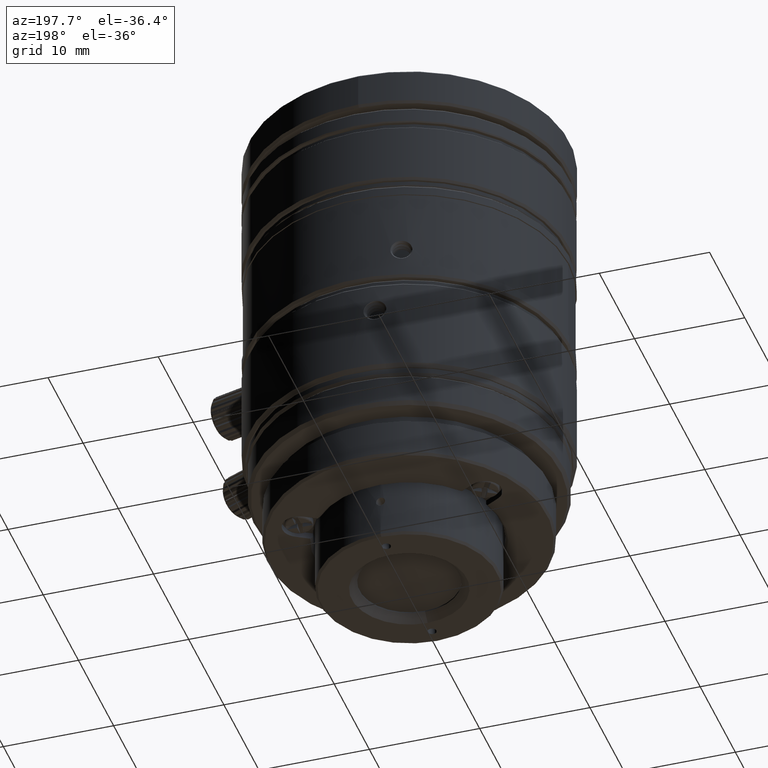
[diagram: clean part render]
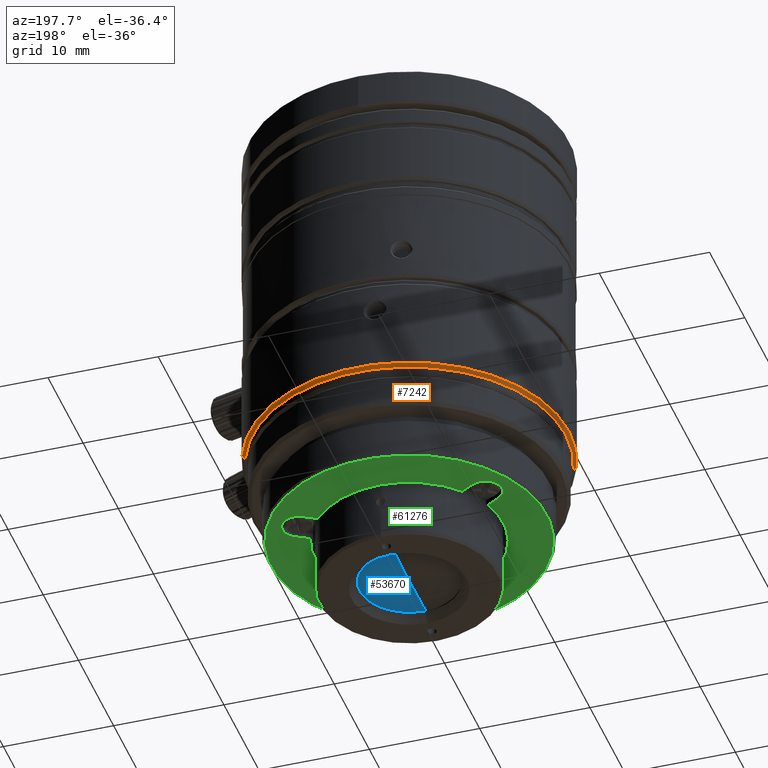
[diagram: same view with three faces highlighted in distinct colors, each labeled with its STEP entity id]
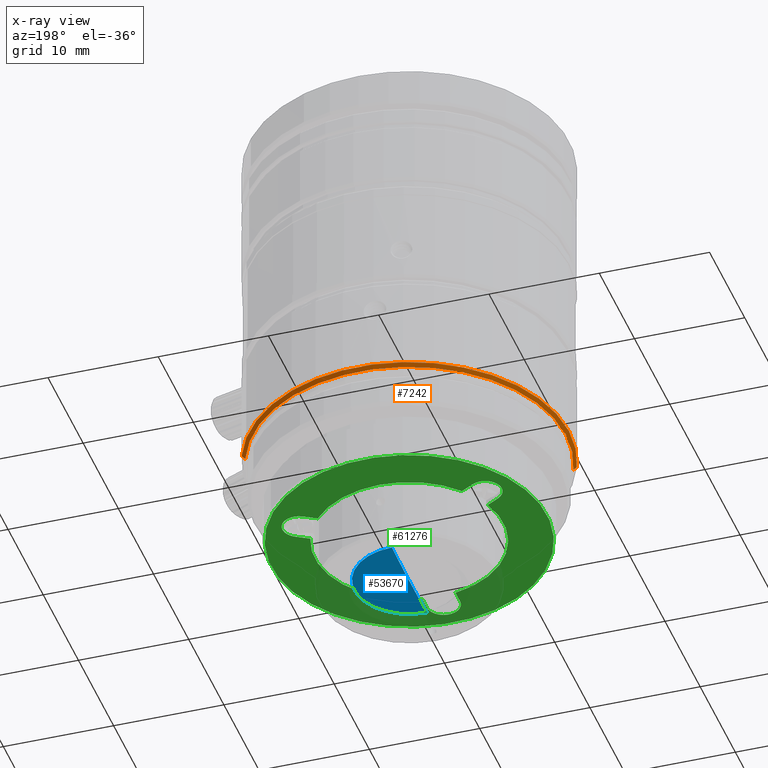
[diagram: x-ray of the same camera — body ghosted, the three highlighted faces saturated]
A machine part, auxiliary view with three faces highlighted in distinct colors.
The next image is the same camera in x-ray (body ghosted, the three faces saturated) — at least one of them is partly hidden behind the body in this view.
Their STEP definitions:

[orange] entity #7242 — the highlighted conical surface has half-angle 45 deg.
#394 = EDGE_CURVE ( 'NONE', #38683, #881, #50352, .T. ) ;
#881 = VERTEX_POINT ( 'NONE', #27456 ) ;
#1758 = VECTOR ( 'NONE', #38557, 999.9999999999998863 ) ;
#2032 = ORIENTED_EDGE ( 'NONE', *, *, #52436, .F. ) ;
#2231 = DIRECTION ( 'NONE',  ( 0.6607143064210023731, 0.2519059435440466066, 0.7071067818213860878 ) ) ;
#6633 = CARTESIAN_POINT ( 'NONE',  ( 13.40851274284208294, 5.112170299905343995, 6.850000065150399386 ) ) ;
#7242 = ADVANCED_FACE ( 'NONE', ( #33429 ), #26513, .T. ) ;
#7774 = DIRECTION ( 'NONE',  ( 4.394442892540094465E-17, 1.675438646382779897E-17, 1.000000000000000000 ) ) ;
#8232 = VERTEX_POINT ( 'NONE', #27007 ) ;
#10286 = VECTOR ( 'NONE', #2231, 1000.000000000000000 ) ;
#17113 = LINE ( 'NONE', #6633, #10286 ) ;
#23548 = CARTESIAN_POINT ( 'NONE',  ( 0.000000000000000000, 0.000000000000000000, 6.700000065126300086 ) ) ;
#23652 = CARTESIAN_POINT ( 'NONE',  ( 13.54867141293579635, 5.165607620230802333, 7.000000065175000508 ) ) ;
#24585 = DIRECTION ( 'NONE',  ( 0.9343911338334085492, 0.3562488021222208201, 0.000000000000000000 ) ) ;
#26513 = CONICAL_SURFACE ( 'NONE', #40528, 14.34999997038999275, 0.7853981624996511091 ) ;
#27007 = CARTESIAN_POINT ( 'NONE',  ( -13.54867141293578747, -5.165607620230803221, 7.000000065175000508 ) ) ;
#27456 = CARTESIAN_POINT ( 'NONE',  ( -13.26835407299621927, -5.058732979674375407, 6.700000065126300086 ) ) ;
#28076 = ORIENTED_EDGE ( 'NONE', *, *, #394, .T. ) ;
#31489 = VERTEX_POINT ( 'NONE', #23652 ) ;
#33429 = FACE_OUTER_BOUND ( 'NONE', #42986, .T. ) ;
#34141 = CARTESIAN_POINT ( 'NONE',  ( -13.40851274284208294, -5.112170299905343107, 6.850000065150401163 ) ) ;
#34781 = CIRCLE ( 'NONE', #35880, 14.49999997041000732 ) ;
#35082 = ORIENTED_EDGE ( 'NONE', *, *, #39409, .F. ) ;
#35880 = AXIS2_PLACEMENT_3D ( 'NONE', #60658, #49574, #24585 ) ;
#38557 = DIRECTION ( 'NONE',  ( -0.6607143064210023731, -0.2519059435440464956, 0.7071067818213861988 ) ) ;
#38683 = VERTEX_POINT ( 'NONE', #50658 ) ;
#39409 = EDGE_CURVE ( 'NONE', #38683, #31489, #17113, .T. ) ;
#40528 = AXIS2_PLACEMENT_3D ( 'NONE', #58722, #7774, #54326 ) ;
#41069 = EDGE_CURVE ( 'NONE', #881, #8232, #64150, .T. ) ;
#42986 = EDGE_LOOP ( 'NONE', ( #28076, #50300, #2032, #35082 ) ) ;
#44134 = DIRECTION ( 'NONE',  ( 0.000000000000000000, 0.000000000000000000, 1.000000000000000000 ) ) ;
#49574 = DIRECTION ( 'NONE',  ( 0.000000000000000000, 0.000000000000000000, 1.000000000000000000 ) ) ;
#50300 = ORIENTED_EDGE ( 'NONE', *, *, #41069, .T. ) ;
#50352 = CIRCLE ( 'NONE', #58982, 14.19999997035999328 ) ;
#50658 = CARTESIAN_POINT ( 'NONE',  ( 13.26835407299622105, 5.058732979674377184, 6.700000065126300086 ) ) ;
#52436 = EDGE_CURVE ( 'NONE', #31489, #8232, #34781, .T. ) ;
#54326 = DIRECTION ( 'NONE',  ( 0.9343911338334084382, 0.3562488021222211532, -6.044332681380703115E-17 ) ) ;
#58722 = CARTESIAN_POINT ( 'NONE',  ( 0.000000000000000000, 0.000000000000000000, 6.850000065150400275 ) ) ;
#58982 = AXIS2_PLACEMENT_3D ( 'NONE', #23548, #44134, #64666 ) ;
#60658 = CARTESIAN_POINT ( 'NONE',  ( 0.000000000000000000, 0.000000000000000000, 7.000000065175000508 ) ) ;
#64150 = LINE ( 'NONE', #34141, #1758 ) ;
#64666 = DIRECTION ( 'NONE',  ( 0.9343911338334084382, 0.3562488021222211532, 0.000000000000000000 ) ) ;

[blue] entity #53670 — the highlighted spherical surface has radius 111.3 mm.
#3561 = DIRECTION ( 'NONE',  ( 1.224646799147353207E-16, -1.000000000000000000, 0.000000000000000000 ) ) ;
#3935 = CARTESIAN_POINT ( 'NONE',  ( 0.000000000000000000, -6.815159437255015886E-15, -5.801109709803991876 ) ) ;
#4858 = DIRECTION ( 'NONE',  ( 1.000000000000000000, 0.000000000000000000, 0.000000000000000000 ) ) ;
#10571 = CARTESIAN_POINT ( 'NONE',  ( 0.000000000000000000, 0.000000000000000000, 105.4988902901960017 ) ) ;
#11675 = DIRECTION ( 'NONE',  ( -1.000000000000000000, -0.000000000000000000, -0.000000000000000000 ) ) ;
#17255 = AXIS2_PLACEMENT_3D ( 'NONE', #19431, #41600, #3561 ) ;
#17814 = VERTEX_POINT ( 'NONE', #21243 ) ;
#18057 = SPHERICAL_SURFACE ( 'NONE', #20032, 111.2999999999999972 ) ;
#19431 = CARTESIAN_POINT ( 'NONE',  ( 0.000000000000000000, 0.000000000000000000, 105.4988902901960017 ) ) ;
#20032 = AXIS2_PLACEMENT_3D ( 'NONE', #23456, #11675, #47790 ) ;
#20713 = DIRECTION ( 'NONE',  ( 1.000000000000000000, 0.000000000000000000, 0.000000000000000000 ) ) ;
#21243 = CARTESIAN_POINT ( 'NONE',  ( -6.072411153572116786E-16, 4.958499999999971486, -5.690602368732880834 ) ) ;
#21433 = CARTESIAN_POINT ( 'NONE',  ( 0.000000000000000000, 0.000000000000000000, -5.690602368732879945 ) ) ;
#23456 = CARTESIAN_POINT ( 'NONE',  ( 0.000000000000000000, 0.000000000000000000, 105.4988902901960017 ) ) ;
#25892 = EDGE_LOOP ( 'NONE', ( #37806, #57881, #59206 ) ) ;
#28111 = AXIS2_PLACEMENT_3D ( 'NONE', #10571, #20713, #41282 ) ;
#29752 = VERTEX_POINT ( 'NONE', #30279 ) ;
#30279 = CARTESIAN_POINT ( 'NONE',  ( 0.000000000000000000, -4.958499999999971486, -5.690602368732880834 ) ) ;
#35521 = VERTEX_POINT ( 'NONE', #3935 ) ;
#36270 = DIRECTION ( 'NONE',  ( 0.000000000000000000, 0.000000000000000000, 1.000000000000000000 ) ) ;
#37806 = ORIENTED_EDGE ( 'NONE', *, *, #63359, .F. ) ;
#38935 = CIRCLE ( 'NONE', #42143, 4.958499999999999908 ) ;
#41282 = DIRECTION ( 'NONE',  ( 0.000000000000000000, 0.000000000000000000, -1.000000000000000000 ) ) ;
#41600 = DIRECTION ( 'NONE',  ( -1.000000000000000000, -1.224646799147353207E-16, -4.528481168209663905E-48 ) ) ;
#42143 = AXIS2_PLACEMENT_3D ( 'NONE', #21433, #36270, #4858 ) ;
#44186 = CIRCLE ( 'NONE', #17255, 111.2999999999999972 ) ;
#46862 = EDGE_CURVE ( 'NONE', #29752, #35521, #56091, .T. ) ;
#47790 = DIRECTION ( 'NONE',  ( 0.000000000000000000, -1.000000000000000000, 0.000000000000000000 ) ) ;
#53670 = ADVANCED_FACE ( 'NONE', ( #54148 ), #18057, .T. ) ;
#54148 = FACE_OUTER_BOUND ( 'NONE', #25892, .T. ) ;
#56091 = CIRCLE ( 'NONE', #28111, 111.2999999999999972 ) ;
#57881 = ORIENTED_EDGE ( 'NONE', *, *, #65334, .F. ) ;
#59206 = ORIENTED_EDGE ( 'NONE', *, *, #46862, .T. ) ;
#63359 = EDGE_CURVE ( 'NONE', #17814, #35521, #44186, .T. ) ;
#65334 = EDGE_CURVE ( 'NONE', #29752, #17814, #38935, .T. ) ;

[green] entity #61276 — the highlighted planar face has unit normal (0, 0, 1).
#401 = VERTEX_POINT ( 'NONE', #59619 ) ;
#465 = EDGE_CURVE ( 'NONE', #7147, #4331, #13844, .T. ) ;
#1425 = VERTEX_POINT ( 'NONE', #28882 ) ;
#1493 = FACE_OUTER_BOUND ( 'NONE', #10613, .T. ) ;
#2327 = VERTEX_POINT ( 'NONE', #9533 ) ;
#2766 = DIRECTION ( 'NONE',  ( -0.4999999999999738542, -0.8660254037844538066, 0.000000000000000000 ) ) ;
#3011 = DIRECTION ( 'NONE',  ( 0.8660254037844538066, -0.4999999999999738542, 0.000000000000000000 ) ) ;
#3063 = AXIS2_PLACEMENT_3D ( 'NONE', #7221, #43672, #48745 ) ;
#3337 = VECTOR ( 'NONE', #12238, 1000.000000000000000 ) ;
#3881 = ORIENTED_EDGE ( 'NONE', *, *, #9289, .F. ) ;
#3889 = CARTESIAN_POINT ( 'NONE',  ( 0.000000000000000000, 0.000000000000000000, -1.500000008461999990 ) ) ;
#3992 = VERTEX_POINT ( 'NONE', #60401 ) ;
#4141 = ORIENTED_EDGE ( 'NONE', *, *, #51724, .F. ) ;
#4222 = DIRECTION ( 'NONE',  ( -0.1754385961328599475, -0.9844903752637357286, 0.000000000000000000 ) ) ;
#4331 = VERTEX_POINT ( 'NONE', #35345 ) ;
#5603 = EDGE_CURVE ( 'NONE', #2327, #401, #9820, .T. ) ;
#6227 = PLANE ( 'NONE',  #25756 ) ;
#6447 = VERTEX_POINT ( 'NONE', #43398 ) ;
#6856 = EDGE_CURVE ( 'NONE', #401, #57811, #14267, .T. ) ;
#6899 = CARTESIAN_POINT ( 'NONE',  ( -5.650003640014699791, -9.786093367455249492, -1.500000008461999990 ) ) ;
#7080 = VERTEX_POINT ( 'NONE', #32107 ) ;
#7147 = VERTEX_POINT ( 'NONE', #48957 ) ;
#7221 = CARTESIAN_POINT ( 'NONE',  ( 8.443747686897991045, 4.875000000000000000, -1.500000008461999990 ) ) ;
#7810 = AXIS2_PLACEMENT_3D ( 'NONE', #3889, #45085, #4222 ) ;
#8370 = CARTESIAN_POINT ( 'NONE',  ( 6.539675934080709574, 5.507734468523730165, -1.500000008461999990 ) ) ;
#8442 = AXIS2_PLACEMENT_3D ( 'NONE', #19790, #40375, #15394 ) ;
#9289 = EDGE_CURVE ( 'NONE', #57811, #15001, #38000, .T. ) ;
#9533 = CARTESIAN_POINT ( 'NONE',  ( -7.693747686898469773, 6.174038105676420862, -1.500000008461999990 ) ) ;
#9579 = DIRECTION ( 'NONE',  ( -0.8660254037844328234, -0.5000000000000099920, 0.000000000000000000 ) ) ;
#9820 = LINE ( 'NONE', #64829, #28930 ) ;
#9905 = ORIENTED_EDGE ( 'NONE', *, *, #6856, .F. ) ;
#9919 = LINE ( 'NONE', #45696, #56710 ) ;
#9993 = LINE ( 'NONE', #42050, #32081 ) ;
#10070 = AXIS2_PLACEMENT_3D ( 'NONE', #37821, #22638, #3011 ) ;
#10613 = EDGE_LOOP ( 'NONE', ( #49368, #28120 ) ) ;
#11132 = EDGE_CURVE ( 'NONE', #20017, #3992, #26269, .T. ) ;
#11365 = VERTEX_POINT ( 'NONE', #35710 ) ;
#11833 = EDGE_CURVE ( 'NONE', #3992, #20017, #63303, .T. ) ;
#11993 = EDGE_CURVE ( 'NONE', #1425, #7147, #9993, .T. ) ;
#12238 = DIRECTION ( 'NONE',  ( 0.000000000000000000, 1.000000000000000000, 0.000000000000000000 ) ) ;
#12419 = AXIS2_PLACEMENT_3D ( 'NONE', #56306, #25614, #56639 ) ;
#12656 = ORIENTED_EDGE ( 'NONE', *, *, #53932, .F. ) ;
#13844 = CIRCLE ( 'NONE', #8442, 1.500000000000000000 ) ;
#14267 = CIRCLE ( 'NONE', #60576, 8.550000017458998514 ) ;
#15001 = VERTEX_POINT ( 'NONE', #58166 ) ;
#15394 = DIRECTION ( 'NONE',  ( 1.000000000000000000, 2.195003438269319775E-12, 0.000000000000000000 ) ) ;
#16410 = CARTESIAN_POINT ( 'NONE',  ( 6.539675934080209529, 5.507734468522870408, -1.500000008461999990 ) ) ;
#17618 = DIRECTION ( 'NONE',  ( 1.000000000000000000, 2.195003438269319775E-12, 0.000000000000000000 ) ) ;
#17659 = DIRECTION ( 'NONE',  ( -0.7648743766931670462, 0.6441794686872901465, 0.000000000000000000 ) ) ;
#17794 = EDGE_CURVE ( 'NONE', #11365, #1425, #45773, .T. ) ;
#17887 = CIRCLE ( 'NONE', #29725, 8.550000017458998514 ) ;
#19301 = DIRECTION ( 'NONE',  ( 0.8660254037844541397, -0.4999999999999731326, 0.000000000000000000 ) ) ;
#19379 = VERTEX_POINT ( 'NONE', #55298 ) ;
#19709 = ORIENTED_EDGE ( 'NONE', *, *, #66470, .F. ) ;
#19790 = CARTESIAN_POINT ( 'NONE',  ( 4.371503159461549839E-13, -9.749999999999758415, -1.500000008461999990 ) ) ;
#20017 = VERTEX_POINT ( 'NONE', #66337 ) ;
#21107 = AXIS2_PLACEMENT_3D ( 'NONE', #48041, #38906, #2766 ) ;
#21309 = CIRCLE ( 'NONE', #29905, 1.500000000000000000 ) ;
#22638 = DIRECTION ( 'NONE',  ( 0.000000000000000000, 0.000000000000000000, 1.000000000000000000 ) ) ;
#23055 = CARTESIAN_POINT ( 'NONE',  ( -8.039675934080570130, 2.909658257169590367, -1.500000008461999990 ) ) ;
#23627 = VERTEX_POINT ( 'NONE', #44159 ) ;
#24612 = ORIENTED_EDGE ( 'NONE', *, *, #29943, .F. ) ;
#25614 = DIRECTION ( 'NONE',  ( 0.000000000000000000, 0.000000000000000000, -1.000000000000000000 ) ) ;
#25756 = AXIS2_PLACEMENT_3D ( 'NONE', #6899, #36622, #32893 ) ;
#26269 = CIRCLE ( 'NONE', #10070, 12.50000728003000283 ) ;
#28120 = ORIENTED_EDGE ( 'NONE', *, *, #11132, .F. ) ;
#28593 = ORIENTED_EDGE ( 'NONE', *, *, #465, .F. ) ;
#28882 = CARTESIAN_POINT ( 'NONE',  ( 1.500000000000359934, -8.417392725692460331, -1.500000008461999990 ) ) ;
#28930 = VECTOR ( 'NONE', #19301, 1000.000000000000114 ) ;
#29238 = VECTOR ( 'NONE', #63586, 1000.000000000000114 ) ;
#29725 = AXIS2_PLACEMENT_3D ( 'NONE', #51739, #36570, #36218 ) ;
#29905 = AXIS2_PLACEMENT_3D ( 'NONE', #63138, #43269, #17618 ) ;
#29921 = DIRECTION ( 'NONE',  ( 0.000000000000000000, 0.000000000000000000, 1.000000000000000000 ) ) ;
#29943 = EDGE_CURVE ( 'NONE', #15001, #59216, #62296, .T. ) ;
#30586 = DIRECTION ( 'NONE',  ( 5.001554725936329584E-14, -1.000000000000000000, 0.000000000000000000 ) ) ;
#32081 = VECTOR ( 'NONE', #30586, 1000.000000000000000 ) ;
#32107 = CARTESIAN_POINT ( 'NONE',  ( -9.193747686898388949, 3.575961894323059997, -1.500000008461999990 ) ) ;
#32380 = EDGE_CURVE ( 'NONE', #59216, #6447, #43784, .T. ) ;
#32893 = DIRECTION ( 'NONE',  ( 1.000000000000000000, 0.000000000000000000, 0.000000000000000000 ) ) ;
#33473 = CARTESIAN_POINT ( 'NONE',  ( -1.499999999999489964, -9.750000000000998313, -1.500000008461999990 ) ) ;
#34232 = AXIS2_PLACEMENT_3D ( 'NONE', #54560, #29921, #50172 ) ;
#35345 = CARTESIAN_POINT ( 'NONE',  ( 1.299038105677117860, -10.49999999999971934, -1.500000008461999990 ) ) ;
#35710 = CARTESIAN_POINT ( 'NONE',  ( 7.404517217321576972, -4.275000008639525007, -1.500000008461999990 ) ) ;
#35846 = CARTESIAN_POINT ( 'NONE',  ( 8.443747686897991045, 4.875000000000000000, -1.500000008461999990 ) ) ;
#36154 = CIRCLE ( 'NONE', #21107, 1.500000000000000000 ) ;
#36218 = DIRECTION ( 'NONE',  ( 0.9403129728261239162, 0.3403109065764670649, 0.000000000000000000 ) ) ;
#36570 = DIRECTION ( 'NONE',  ( 0.000000000000000000, 0.000000000000000000, -1.000000000000000000 ) ) ;
#36622 = DIRECTION ( 'NONE',  ( 0.000000000000000000, 0.000000000000000000, 1.000000000000000000 ) ) ;
#36714 = CARTESIAN_POINT ( 'NONE',  ( -1.500000000000000000, -9.750000000001870504, -1.500000008461999990 ) ) ;
#37312 = ORIENTED_EDGE ( 'NONE', *, *, #11993, .F. ) ;
#37733 = VERTEX_POINT ( 'NONE', #56080 ) ;
#37821 = CARTESIAN_POINT ( 'NONE',  ( 0.000000000000000000, 0.000000000000000000, -1.500000008461999990 ) ) ;
#38000 = LINE ( 'NONE', #16410, #29238 ) ;
#38449 = EDGE_CURVE ( 'NONE', #7080, #2327, #36154, .T. ) ;
#38584 = ORIENTED_EDGE ( 'NONE', *, *, #41889, .F. ) ;
#38906 = DIRECTION ( 'NONE',  ( 0.000000000000000000, 0.000000000000000000, -1.000000000000000000 ) ) ;
#40375 = DIRECTION ( 'NONE',  ( 0.000000000000000000, 0.000000000000000000, -1.000000000000000000 ) ) ;
#41889 = EDGE_CURVE ( 'NONE', #6447, #37733, #9919, .T. ) ;
#42050 = CARTESIAN_POINT ( 'NONE',  ( 1.500000000000359934, -8.417392725692460331, -1.500000008461999990 ) ) ;
#43269 = DIRECTION ( 'NONE',  ( 0.000000000000000000, 0.000000000000000000, -1.000000000000000000 ) ) ;
#43398 = CARTESIAN_POINT ( 'NONE',  ( 9.193747686898330329, 3.575961894323210100, -1.500000008461999990 ) ) ;
#43627 = LINE ( 'NONE', #23055, #43757 ) ;
#43672 = DIRECTION ( 'NONE',  ( 0.000000000000000000, 0.000000000000000000, -1.000000000000000000 ) ) ;
#43757 = VECTOR ( 'NONE', #63169, 1000.000000000000114 ) ;
#43784 = CIRCLE ( 'NONE', #44828, 1.499999999999999556 ) ;
#44159 = CARTESIAN_POINT ( 'NONE',  ( -8.039675934080570130, 2.909658257169590367, -1.500000008461999990 ) ) ;
#44828 = AXIS2_PLACEMENT_3D ( 'NONE', #35846, #62708, #60798 ) ;
#45085 = DIRECTION ( 'NONE',  ( 0.000000000000000000, 0.000000000000000000, -1.000000000000000000 ) ) ;
#45696 = CARTESIAN_POINT ( 'NONE',  ( 9.193747686898330329, 3.575961894323210100, -1.500000008461999990 ) ) ;
#45773 = CIRCLE ( 'NONE', #12419, 8.550000017458998514 ) ;
#47723 = CIRCLE ( 'NONE', #7810, 8.550000017459002066 ) ;
#48036 = ORIENTED_EDGE ( 'NONE', *, *, #5603, .F. ) ;
#48041 = CARTESIAN_POINT ( 'NONE',  ( -8.443747686898429805, 4.874999999999739764, -1.500000008461999990 ) ) ;
#48745 = DIRECTION ( 'NONE',  ( -0.5000000000015248913, 0.8660254037835583008, 0.000000000000000000 ) ) ;
#48957 = CARTESIAN_POINT ( 'NONE',  ( 1.500000000000369926, -9.749999999998518518, -1.500000008461999990 ) ) ;
#49368 = ORIENTED_EDGE ( 'NONE', *, *, #11833, .F. ) ;
#49581 = EDGE_LOOP ( 'NONE', ( #4141, #19709, #59183, #28593, #37312, #61443, #12656, #38584, #64983, #24612, #3881, #9905, #48036, #52738, #65534 ) ) ;
#50172 = DIRECTION ( 'NONE',  ( 0.8660254037844538066, -0.4999999999999738542, 0.000000000000000000 ) ) ;
#51724 = EDGE_CURVE ( 'NONE', #19379, #23627, #47723, .T. ) ;
#51739 = CARTESIAN_POINT ( 'NONE',  ( 0.000000000000000000, 0.000000000000000000, -1.500000008461999990 ) ) ;
#52738 = ORIENTED_EDGE ( 'NONE', *, *, #38449, .F. ) ;
#53425 = DIRECTION ( 'NONE',  ( 0.000000000000000000, 0.000000000000000000, -1.000000000000000000 ) ) ;
#53932 = EDGE_CURVE ( 'NONE', #37733, #11365, #17887, .T. ) ;
#54191 = EDGE_CURVE ( 'NONE', #23627, #7080, #43627, .T. ) ;
#54560 = CARTESIAN_POINT ( 'NONE',  ( 0.000000000000000000, 0.000000000000000000, -1.500000008461999990 ) ) ;
#55298 = CARTESIAN_POINT ( 'NONE',  ( -1.499999999999370059, -8.417392725692710798, -1.500000008461999990 ) ) ;
#55347 = CARTESIAN_POINT ( 'NONE',  ( 9.742785792574672143, 4.125000000000039968, -1.500000008461999990 ) ) ;
#55357 = VERTEX_POINT ( 'NONE', #36714 ) ;
#56080 = CARTESIAN_POINT ( 'NONE',  ( 8.039675934080010578, 2.909658257169750240, -1.500000008461999990 ) ) ;
#56306 = CARTESIAN_POINT ( 'NONE',  ( 0.000000000000000000, 0.000000000000000000, -1.500000008461999990 ) ) ;
#56639 = DIRECTION ( 'NONE',  ( 0.9403129728261239162, 0.3403109065764670649, 0.000000000000000000 ) ) ;
#56710 = VECTOR ( 'NONE', #9579, 1000.000000000000114 ) ;
#57811 = VERTEX_POINT ( 'NONE', #8370 ) ;
#58102 = LINE ( 'NONE', #33473, #3337 ) ;
#58166 = CARTESIAN_POINT ( 'NONE',  ( 7.693747686897149940, 6.174038105675959898, -1.500000008461999990 ) ) ;
#58179 = FACE_BOUND ( 'NONE', #49581, .T. ) ;
#59042 = EDGE_CURVE ( 'NONE', #4331, #55357, #21309, .T. ) ;
#59183 = ORIENTED_EDGE ( 'NONE', *, *, #59042, .F. ) ;
#59216 = VERTEX_POINT ( 'NONE', #55347 ) ;
#59619 = CARTESIAN_POINT ( 'NONE',  ( -6.539675934080650066, 5.507734468522960114, -1.500000008461999990 ) ) ;
#60401 = CARTESIAN_POINT ( 'NONE',  ( -10.82532385215203696, 6.250003640104419667, -1.500000008461999990 ) ) ;
#60576 = AXIS2_PLACEMENT_3D ( 'NONE', #63183, #53425, #17659 ) ;
#60798 = DIRECTION ( 'NONE',  ( -0.5000000000015248913, 0.8660254037835583008, 0.000000000000000000 ) ) ;
#61276 = ADVANCED_FACE ( 'NONE', ( #58179, #1493 ), #6227, .F. ) ;
#61443 = ORIENTED_EDGE ( 'NONE', *, *, #17794, .F. ) ;
#62296 = CIRCLE ( 'NONE', #3063, 1.499999999999999556 ) ;
#62708 = DIRECTION ( 'NONE',  ( 0.000000000000000000, 0.000000000000000000, -1.000000000000000000 ) ) ;
#63138 = CARTESIAN_POINT ( 'NONE',  ( 4.371503159461549839E-13, -9.749999999999758415, -1.500000008461999990 ) ) ;
#63169 = DIRECTION ( 'NONE',  ( -0.8660254037844541397, 0.4999999999999731326, 0.000000000000000000 ) ) ;
#63183 = CARTESIAN_POINT ( 'NONE',  ( 0.000000000000000000, 0.000000000000000000, -1.500000008461999990 ) ) ;
#63303 = CIRCLE ( 'NONE', #34232, 12.50000728003000283 ) ;
#63586 = DIRECTION ( 'NONE',  ( 0.8660254037844080655, 0.5000000000000530687, 0.000000000000000000 ) ) ;
#64829 = CARTESIAN_POINT ( 'NONE',  ( -7.693747686898469773, 6.174038105676420862, -1.500000008461999990 ) ) ;
#64983 = ORIENTED_EDGE ( 'NONE', *, *, #32380, .F. ) ;
#65534 = ORIENTED_EDGE ( 'NONE', *, *, #54191, .F. ) ;
#66337 = CARTESIAN_POINT ( 'NONE',  ( 10.82532385215203519, -6.250003640104421443, -1.500000008461999990 ) ) ;
#66470 = EDGE_CURVE ( 'NONE', #55357, #19379, #58102, .T. ) ;